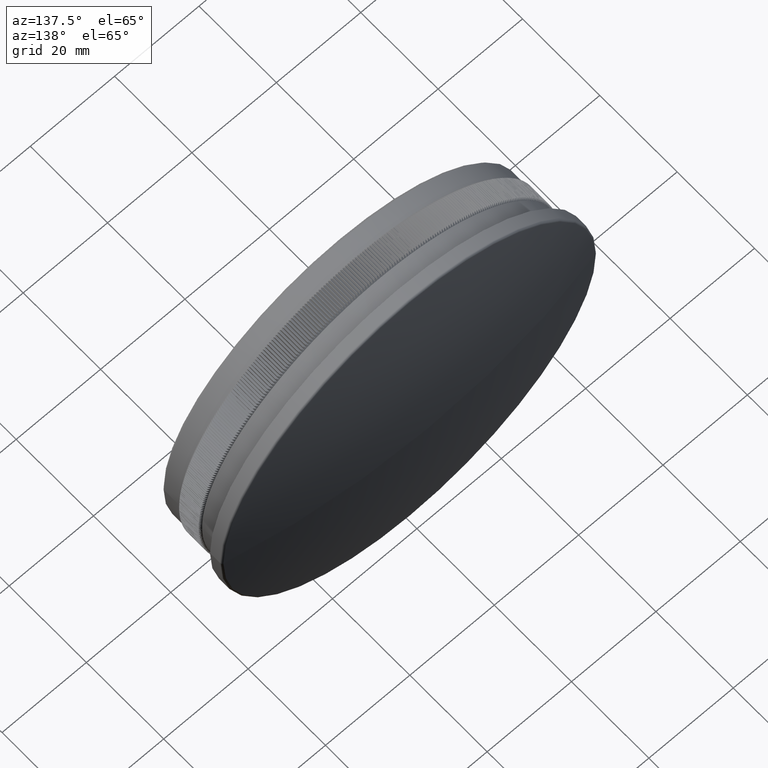
[diagram: clean part render]
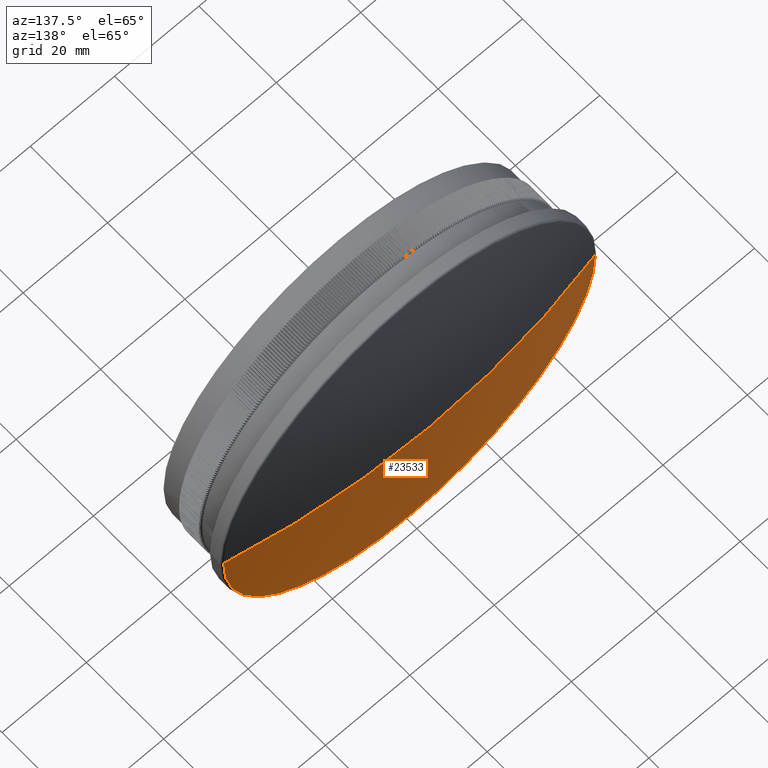
[diagram: same view with one face highlighted and labeled with its STEP entity id]
A machine part, auxiliary view. The second image highlights one B-rep face of the part: STEP entity #23533.
In plain terms, the highlighted spherical surface has radius 200.08 mm.
Its self-contained STEP definition (entity closure, byte-faithful):
#46 = CIRCLE ( 'NONE', #59775, 200.0802499999998900 ) ;
#454 = AXIS2_PLACEMENT_3D ( 'NONE', #6917, #30335, #47908 ) ;
#871 = DIRECTION ( 'NONE',  ( 1.000000000000000000, -3.228483489240929000E-015, 0.0000000000000000000 ) ) ;
#2030 = ORIENTED_EDGE ( 'NONE', *, *, #15932, .F. ) ;
#4617 = AXIS2_PLACEMENT_3D ( 'NONE', #12975, #31160, #871 ) ;
#6917 = CARTESIAN_POINT ( 'NONE',  ( 3.225678392869461500E-014, -177.0802499999999200, 0.0000000000000000000 ) ) ;
#8746 = CARTESIAN_POINT ( 'NONE',  ( 3.225678392869461500E-014, -177.0802499999999200, 0.0000000000000000000 ) ) ;
#10053 = AXIS2_PLACEMENT_3D ( 'NONE', #49105, #54878, #36527 ) ;
#12975 = CARTESIAN_POINT ( 'NONE',  ( 6.777194123567939000E-015, 18.08842958724377300, 0.0000000000000000000 ) ) ;
#13507 = CIRCLE ( 'NONE', #4617, 44.06010608514616700 ) ;
#15932 = EDGE_CURVE ( 'NONE', #63791, #60075, #13507, .T. ) ;
#21337 = DIRECTION ( 'NONE',  ( -1.000000000000000000, 0.0000000000000000000, 0.0000000000000000000 ) ) ;
#21762 = VERTEX_POINT ( 'NONE', #26650 ) ;
#23533 = ADVANCED_FACE ( 'NONE', ( #70041 ), #24060, .T. ) ;
#24060 = SPHERICAL_SURFACE ( 'NONE', #10053, 200.0802499999998900 ) ;
#26650 = CARTESIAN_POINT ( 'NONE',  ( 6.937915808869486100E-013, 22.99999999999999300, 0.0000000000000000000 ) ) ;
#30335 = DIRECTION ( 'NONE',  ( 1.224646799147353200E-016, -3.974119664518481600E-031, 1.000000000000000000 ) ) ;
#31160 = DIRECTION ( 'NONE',  ( -3.245114972974590400E-015, -1.000000000000000000, -0.0000000000000000000 ) ) ;
#36527 = DIRECTION ( 'NONE',  ( 1.000000000000000000, -3.190610963148363400E-015, 0.0000000000000000000 ) ) ;
#46165 = CARTESIAN_POINT ( 'NONE',  ( 44.06010608514615300, 18.08842958724361700, 0.0000000000000000000 ) ) ;
#47908 = DIRECTION ( 'NONE',  ( 1.000000000000000000, 0.0000000000000000000, -1.224646799147353500E-016 ) ) ;
#49105 = CARTESIAN_POINT ( 'NONE',  ( 3.225678392869461500E-014, -177.0802499999999200, 0.0000000000000000000 ) ) ;
#49800 = CARTESIAN_POINT ( 'NONE',  ( -44.06010608514547800, 18.08842958724389800, 5.395806788726705300E-015 ) ) ;
#51251 = DIRECTION ( 'NONE',  ( 0.0000000000000000000, 0.0000000000000000000, -1.000000000000000000 ) ) ;
#54878 = DIRECTION ( 'NONE',  ( -0.0000000000000000000, 0.0000000000000000000, 1.000000000000000000 ) ) ;
#59184 = ORIENTED_EDGE ( 'NONE', *, *, #59388, .T. ) ;
#59388 = EDGE_CURVE ( 'NONE', #21762, #60075, #46, .T. ) ;
#59775 = AXIS2_PLACEMENT_3D ( 'NONE', #8746, #51251, #21337 ) ;
#60075 = VERTEX_POINT ( 'NONE', #46165 ) ;
#62493 = EDGE_CURVE ( 'NONE', #21762, #63791, #71135, .T. ) ;
#63430 = ORIENTED_EDGE ( 'NONE', *, *, #62493, .F. ) ;
#63791 = VERTEX_POINT ( 'NONE', #49800 ) ;
#70041 = FACE_OUTER_BOUND ( 'NONE', #71921, .T. ) ;
#71135 = CIRCLE ( 'NONE', #454, 200.0802499999998900 ) ;
#71921 = EDGE_LOOP ( 'NONE', ( #63430, #59184, #2030 ) ) ;